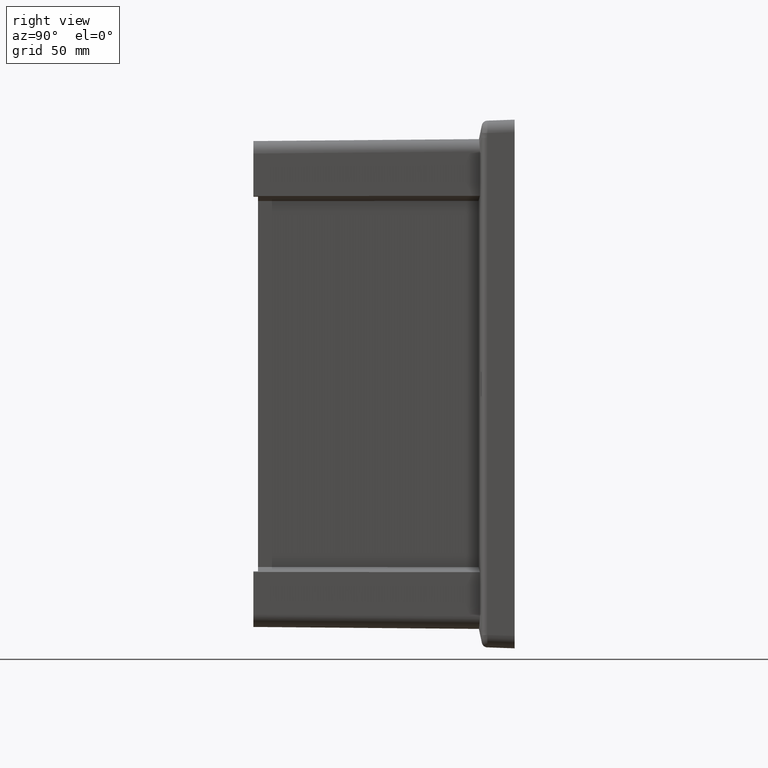
[diagram: clean part render]
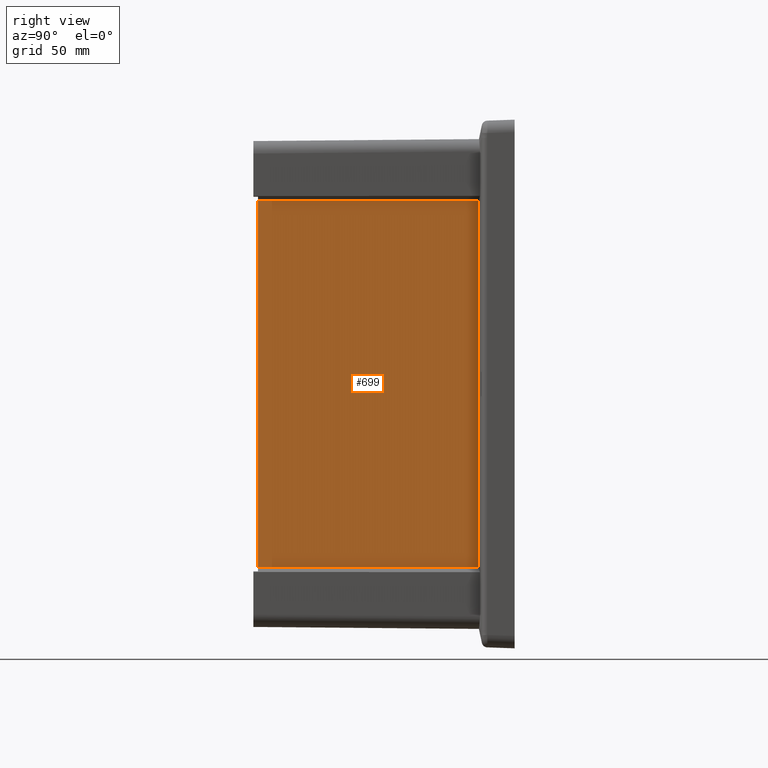
[diagram: same view with one face highlighted and labeled with its STEP entity id]
A machine part, right view. The second image highlights one B-rep face of the part: STEP entity #699.
In plain terms, the highlighted planar face has unit normal (1, -0.0087, -0).
Its self-contained STEP definition (entity closure, byte-faithful):
#699 = ADVANCED_FACE ( 'NONE', ( #11932 ), #13764, .T. ) ;
#1494 = CARTESIAN_POINT ( 'NONE',  ( 80.44645291842977000, -15.85151443186436100, -80.64986790294686600 ) ) ;
#1515 = DIRECTION ( 'NONE',  ( 0.008726535498377317400, 0.9999619230641712000, 0.0000000000000000000 ) ) ;
#1690 = VERTEX_POINT ( 'NONE', #8889 ) ;
#1831 = AXIS2_PLACEMENT_3D ( 'NONE', #16198, #8104, #1515 ) ;
#2659 = VERTEX_POINT ( 'NONE', #1494 ) ;
#2841 = CARTESIAN_POINT ( 'NONE',  ( 79.59865092880389200, -113.0000000000000000, -80.56076032317028500 ) ) ;
#3654 = VECTOR ( 'NONE', #14726, 999.9999999999998900 ) ;
#4489 = ORIENTED_EDGE ( 'NONE', *, *, #7600, .F. ) ;
#4813 = VERTEX_POINT ( 'NONE', #2841 ) ;
#5395 = VECTOR ( 'NONE', #13079, 1000.000000000000100 ) ;
#6067 = VERTEX_POINT ( 'NONE', #11545 ) ;
#6209 = EDGE_CURVE ( 'NONE', #2659, #4813, #17028, .T. ) ;
#6861 = EDGE_CURVE ( 'NONE', #2659, #6067, #7834, .T. ) ;
#6937 = ORIENTED_EDGE ( 'NONE', *, *, #6861, .T. ) ;
#7585 = VECTOR ( 'NONE', #16134, 1000.000000000000000 ) ;
#7600 = EDGE_CURVE ( 'NONE', #4813, #1690, #10551, .T. ) ;
#7834 = LINE ( 'NONE', #16348, #13741 ) ;
#8104 = DIRECTION ( 'NONE',  ( 0.9999619230641713100, -0.008726535498377319100, -1.319631337653705900E-016 ) ) ;
#8889 = CARTESIAN_POINT ( 'NONE',  ( 79.59865092880390600, -113.0000000000000000, 80.56607009157906400 ) ) ;
#10551 = LINE ( 'NONE', #11834, #7585 ) ;
#11545 = CARTESIAN_POINT ( 'NONE',  ( 80.44645291842979900, -15.85151443186435400, 80.65517767135567300 ) ) ;
#11834 = CARTESIAN_POINT ( 'NONE',  ( 79.59865092880387700, -113.0000000000000000, -105.7500000000000000 ) ) ;
#11932 = FACE_OUTER_BOUND ( 'NONE', #16178, .T. ) ;
#13079 = DIRECTION ( 'NONE',  ( -0.008726531827788455000, -0.9999615024563481800, 0.0009171954542836230800 ) ) ;
#13741 = VECTOR ( 'NONE', #15093, 1000.000000000000000 ) ;
#13764 = PLANE ( 'NONE',  #1831 ) ;
#14413 = LINE ( 'NONE', #17470, #3654 ) ;
#14726 = DIRECTION ( 'NONE',  ( 0.008726531827788455000, 0.9999615024563482900, 0.0009171954542838368800 ) ) ;
#15093 = DIRECTION ( 'NONE',  ( 1.322134083685285500E-016, 2.810282748948856300E-017, 1.000000000000000000 ) ) ;
#15386 = ORIENTED_EDGE ( 'NONE', *, *, #6209, .F. ) ;
#16134 = DIRECTION ( 'NONE',  ( 1.319681587084811800E-016, 0.0000000000000000000, 1.000000000000000000 ) ) ;
#16178 = EDGE_LOOP ( 'NONE', ( #17040, #4489, #15386, #6937 ) ) ;
#16198 = CARTESIAN_POINT ( 'NONE',  ( 80.44645291842977000, -15.85151443186436100, -105.7500000000000000 ) ) ;
#16348 = CARTESIAN_POINT ( 'NONE',  ( 80.44645291842977000, -15.85151443186436100, -105.7500000000000000 ) ) ;
#16825 = EDGE_CURVE ( 'NONE', #1690, #6067, #14413, .T. ) ;
#16987 = CARTESIAN_POINT ( 'NONE',  ( 80.44665381826369800, -15.82849359108296600, -80.64988901837027400 ) ) ;
#17028 = LINE ( 'NONE', #16987, #5395 ) ;
#17040 = ORIENTED_EDGE ( 'NONE', *, *, #16825, .F. ) ;
#17470 = CARTESIAN_POINT ( 'NONE',  ( 80.44496094344361800, -16.02247783155516800, 80.65502085846574700 ) ) ;